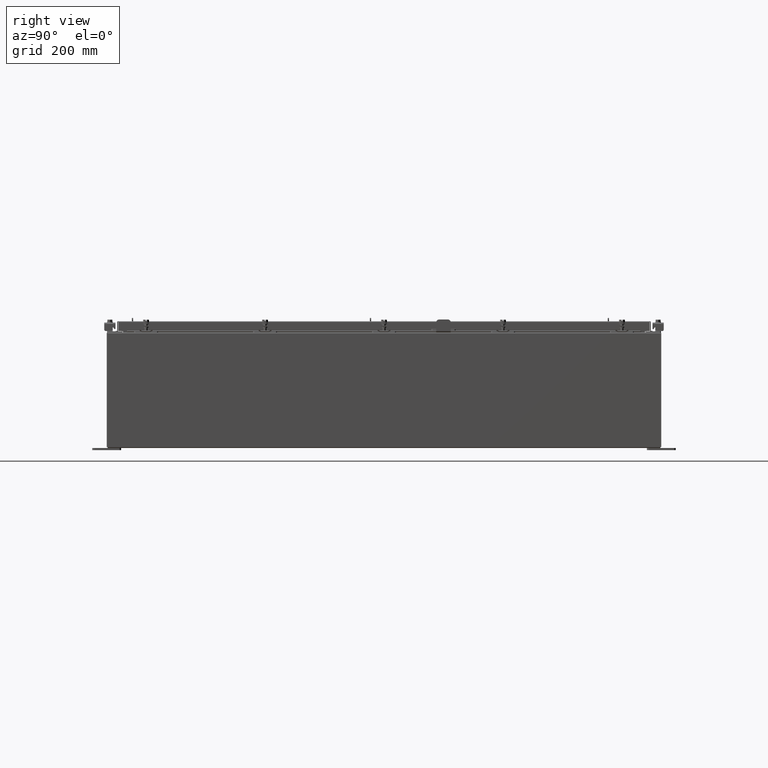
[diagram: clean part render]
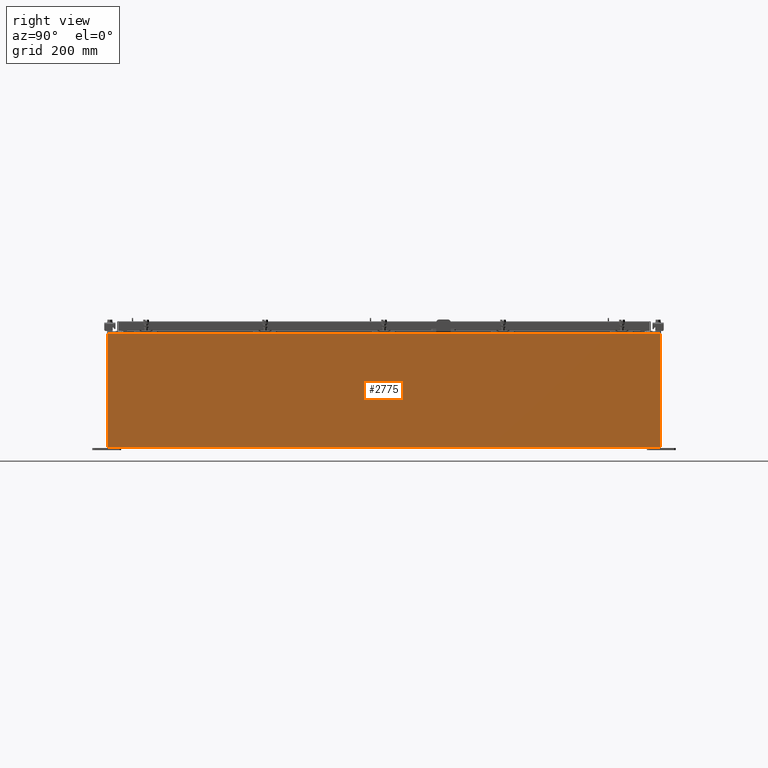
[diagram: same view with one face highlighted and labeled with its STEP entity id]
A machine part, right view. The second image highlights one B-rep face of the part: STEP entity #2775.
In plain terms, the highlighted planar face has unit normal (-1, 0, 0).
Its self-contained STEP definition (entity closure, byte-faithful):
#1264 = EDGE_CURVE ( 'NONE', #2284, #25680, #5049, .T. ) ;
#1300 = LINE ( 'NONE', #14332, #6957 ) ;
#1663 = DIRECTION ( 'NONE',  ( -1.609096119163526300E-031, -1.000000000000000000, -4.567295697298285000E-017 ) ) ;
#2179 = DIRECTION ( 'NONE',  ( 3.523082860860888200E-015, 0.0000000000000000000, 1.000000000000000000 ) ) ;
#2284 = VERTEX_POINT ( 'NONE', #8588 ) ;
#2644 = FACE_OUTER_BOUND ( 'NONE', #10666, .T. ) ;
#2775 = ADVANCED_FACE ( 'NONE', ( #2644 ), #11269, .F. ) ;
#4269 = LINE ( 'NONE', #16989, #8644 ) ;
#5049 = LINE ( 'NONE', #12567, #27078 ) ;
#6944 = ORIENTED_EDGE ( 'NONE', *, *, #10226, .F. ) ;
#6957 = VECTOR ( 'NONE', #1663, 39.37007874015748100 ) ;
#7651 = ORIENTED_EDGE ( 'NONE', *, *, #25912, .T. ) ;
#8588 = CARTESIAN_POINT ( 'NONE',  ( 18.00000000000003200, -23.92529999999998900, 9.837600000000001900 ) ) ;
#8632 = ORIENTED_EDGE ( 'NONE', *, *, #1264, .T. ) ;
#8644 = VECTOR ( 'NONE', #2179, 39.37007874015748100 ) ;
#9067 = LINE ( 'NONE', #13415, #20358 ) ;
#10087 = CARTESIAN_POINT ( 'NONE',  ( 18.00000000000003200, 23.92529999999998600, 9.837599999999994800 ) ) ;
#10226 = EDGE_CURVE ( 'NONE', #25886, #25680, #1300, .T. ) ;
#10413 = EDGE_CURVE ( 'NONE', #25886, #25456, #4269, .T. ) ;
#10666 = EDGE_LOOP ( 'NONE', ( #7651, #8632, #6944, #24771 ) ) ;
#11198 = DIRECTION ( 'NONE',  ( 3.523082860860887800E-015, 0.0000000000000000000, 1.000000000000000000 ) ) ;
#11234 = DIRECTION ( 'NONE',  ( -1.000000000000000000, 0.0000000000000000000, 3.523082860860887800E-015 ) ) ;
#11269 = PLANE ( 'NONE',  #26776 ) ;
#11514 = CARTESIAN_POINT ( 'NONE',  ( 17.99999999999999600, 0.0000000000000000000, -6.367630515150754200E-014 ) ) ;
#12218 = DIRECTION ( 'NONE',  ( -3.523082860860888200E-015, 0.0000000000000000000, -1.000000000000000000 ) ) ;
#12567 = CARTESIAN_POINT ( 'NONE',  ( 17.99999999999999600, -23.92529999999998900, -6.367630515150754200E-014 ) ) ;
#12944 = CARTESIAN_POINT ( 'NONE',  ( 17.99999999999999600, -23.92529999999998900, 0.01299999999999897400 ) ) ;
#13415 = CARTESIAN_POINT ( 'NONE',  ( 18.00000000000003200, 23.92529999999998900, 9.837599999999994800 ) ) ;
#14332 = CARTESIAN_POINT ( 'NONE',  ( 17.99999999999999600, -23.92529999999998900, 0.01299999999999984700 ) ) ;
#15536 = DIRECTION ( 'NONE',  ( -0.0000000000000000000, -1.000000000000000000, -0.0000000000000000000 ) ) ;
#16989 = CARTESIAN_POINT ( 'NONE',  ( 17.99999999999999600, 23.92529999999998900, -6.367630515150754200E-014 ) ) ;
#20358 = VECTOR ( 'NONE', #15536, 39.37007874015748100 ) ;
#24771 = ORIENTED_EDGE ( 'NONE', *, *, #10413, .T. ) ;
#25456 = VERTEX_POINT ( 'NONE', #10087 ) ;
#25680 = VERTEX_POINT ( 'NONE', #12944 ) ;
#25886 = VERTEX_POINT ( 'NONE', #26089 ) ;
#25912 = EDGE_CURVE ( 'NONE', #25456, #2284, #9067, .T. ) ;
#26089 = CARTESIAN_POINT ( 'NONE',  ( 17.99999999999999600, 23.92529999999998600, 0.01300000000000203200 ) ) ;
#26776 = AXIS2_PLACEMENT_3D ( 'NONE', #11514, #11234, #11198 ) ;
#27078 = VECTOR ( 'NONE', #12218, 39.37007874015748100 ) ;